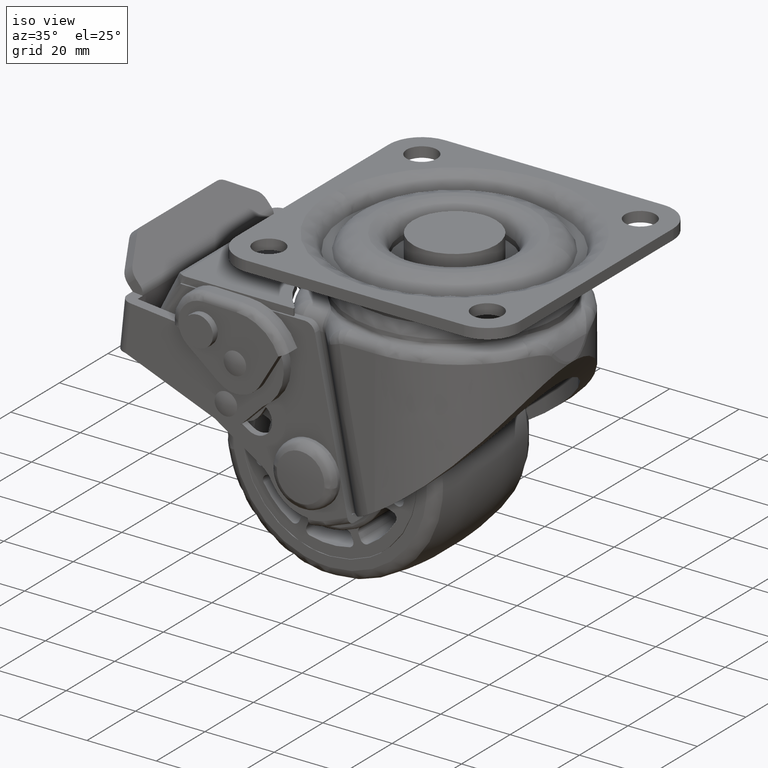
[diagram: clean part render]
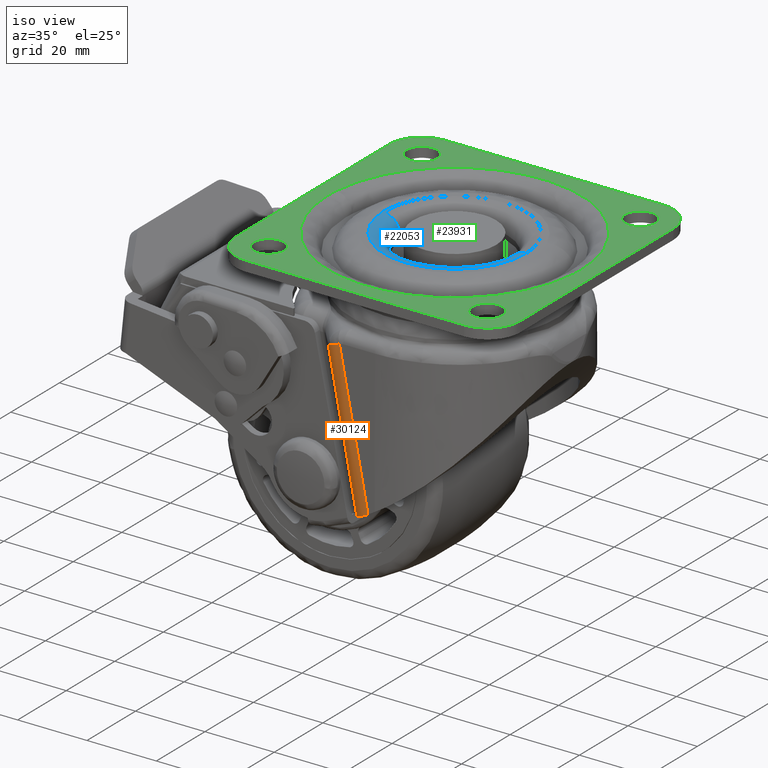
[diagram: same view with three faces highlighted in distinct colors, each labeled with its STEP entity id]
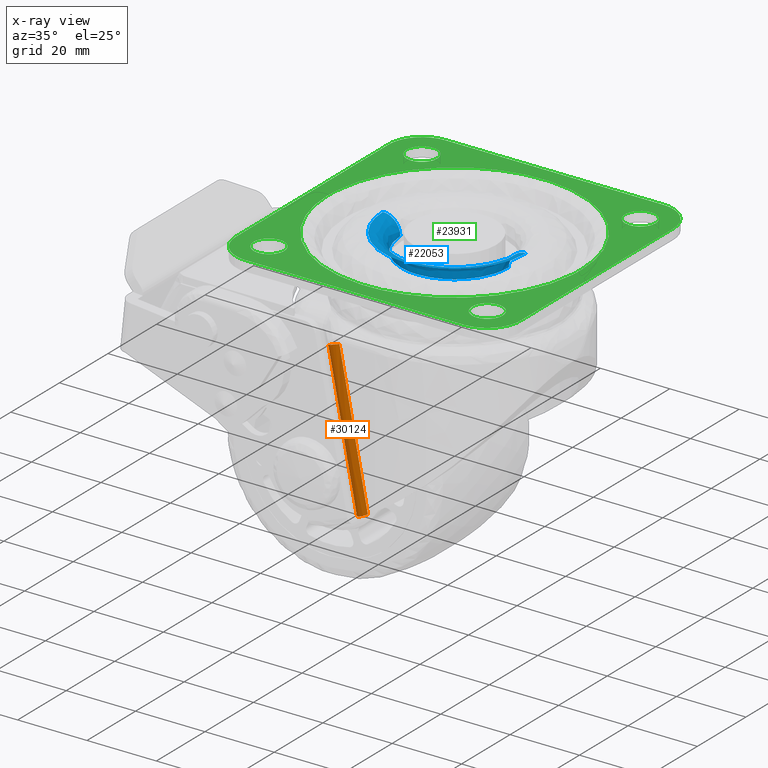
[diagram: x-ray of the same camera — body ghosted, the three highlighted faces saturated]
A machine part, iso view with three faces highlighted in distinct colors.
The next image is the same camera in x-ray (body ghosted, the three faces saturated) — at least one of them is partly hidden behind the body in this view.
Their STEP definitions:

[orange] entity #30124 — the highlighted face is a freeform B-spline surface patch.
#28146=CARTESIAN_POINT('',(6.946377500532240,-30.528909149460802,35.813484270939853));
#28147=VERTEX_POINT('',#28146);
#28170=CARTESIAN_POINT('',(8.521551022174009,-31.943278635437199,36.832827641202798));
#28171=VERTEX_POINT('',#28170);
#28172=CARTESIAN_POINT('',(8.521551022174009,-31.943278635437199,36.832827641202798));
#28173=CARTESIAN_POINT('',(8.373122399816133,-31.850144919843430,36.746752910845650));
#28174=CARTESIAN_POINT('',(8.228581499921129,-31.750556613681450,36.660465911783703));
#28175=CARTESIAN_POINT('',(7.947189664850573,-31.538304436541331,36.487789988488572));
#28176=CARTESIAN_POINT('',(7.810225367931842,-31.425489606261738,36.401314744561162));
#28177=CARTESIAN_POINT('',(7.546489802797897,-31.188695405326381,36.230172082061138));
#28178=CARTESIAN_POINT('',(7.419281062098017,-31.064365854824540,36.145230917303827));
#28179=CARTESIAN_POINT('',(7.175092741890747,-30.804760437177801,35.977565527150702));
#28180=CARTESIAN_POINT('',(7.058087390975459,-30.669474687418479,35.894840933560012));
#28181=CARTESIAN_POINT('',(6.946377500534170,-30.528909149471900,35.813484270938353));
#28182=B_SPLINE_CURVE_WITH_KNOTS('',3,(#28172,#28173,#28174,#28175,#28176,#28177,#28178,#28179,#28180,#28181),.UNSPECIFIED.,.F.,.U.,(4,2,2,2,4),(0.0,0.250000000000000,0.500000000000000,0.750000000000000,1.0),.UNSPECIFIED.);
#28183=EDGE_CURVE('',#28171,#28147,#28182,.T.);
#28316=CARTESIAN_POINT('',(11.793383256865720,-32.873505000000037,38.274537018203048));
#28317=VERTEX_POINT('',#28316);
#28351=CARTESIAN_POINT('',(11.793383256865720,-32.873505000000037,38.274537018203048));
#28352=CARTESIAN_POINT('',(11.492395065689470,-32.873505000000080,38.183736042183860));
#28353=CARTESIAN_POINT('',(11.197108723683661,-32.852649150657328,38.082255271813743));
#28354=CARTESIAN_POINT('',(10.834124888505521,-32.801475586337212,37.944642696607090));
#28355=CARTESIAN_POINT('',(10.761836937276270,-32.789979582289533,37.916576305882380));
#28356=CARTESIAN_POINT('',(10.617863038915960,-32.764465469852929,37.859399910917112));
#28357=CARTESIAN_POINT('',(10.546201781180899,-32.750446400186597,37.830297178607722));
#28358=CARTESIAN_POINT('',(10.333468778884161,-32.704923082281233,37.742064781533841));
#28359=CARTESIAN_POINT('',(10.194173989315161,-32.669878934300463,37.681829298355147));
#28360=CARTESIAN_POINT('',(9.783379556018669,-32.551197182843012,37.497457458314919));
#28361=CARTESIAN_POINT('',(9.518932955087401,-32.454071369037962,37.369682298367501));
#28362=CARTESIAN_POINT('',(9.007349896810993,-32.224992539465987,37.106577999051282));
#28363=CARTESIAN_POINT('',(8.760221834864549,-32.093036136603700,36.971234408595812));
#28364=CARTESIAN_POINT('',(8.521551022173322,-31.943278635437050,36.832827641204602));
#28365=B_SPLINE_CURVE_WITH_KNOTS('',3,(#28351,#28352,#28353,#28354,#28355,#28356,#28357,#28358,#28359,#28360,#28361,#28362,#28363,#28364),.UNSPECIFIED.,.F.,.U.,(4,2,2,2,2,2,4),(0.0,0.250000000000000,0.312499999999999,0.374999999999998,0.499999999999997,0.749999999999999,1.0),.UNSPECIFIED.);
#28366=EDGE_CURVE('',#28317,#28171,#28365,.T.);
#30065=CARTESIAN_POINT('',(6.278222732212611,-30.326052541944659,38.339834822104471));
#30066=CARTESIAN_POINT('',(15.230676496978599,-30.326052541944659,-7.716547146210872));
#30067=CARTESIAN_POINT('',(8.449894484639929,-33.009809207575977,38.761965048686932));
#30068=CARTESIAN_POINT('',(17.402348249405915,-33.009809207575977,-7.294416919628398));
#30069=CARTESIAN_POINT('',(11.861199987934054,-32.867655896210465,39.425055666980448));
#30070=CARTESIAN_POINT('',(20.813653752700045,-32.867655896210465,-6.631326301334885));
#30078=(BOUNDED_SURFACE()B_SPLINE_SURFACE(1,2,((#30065,#30067,#30069),(#30066,#30068,#30070)),.UNSPECIFIED.,.F.,.F.,.U.)B_SPLINE_SURFACE_WITH_KNOTS((2,2),(3,3),(0.0,46.918405220357130),(0.0,6.572773897127705),.UNSPECIFIED.)GEOMETRIC_REPRESENTATION_ITEM()RATIONAL_B_SPLINE_SURFACE(((1.0,0.891597546526503,0.991198961912559),(1.0,0.891597546526503,0.991198961912559)))REPRESENTATION_ITEM('')SURFACE());
#30079=CARTESIAN_POINT('',(20.002864117900401,-32.873504999997763,-3.959580714464740));
#30080=VERTEX_POINT('',#30079);
#30081=CARTESIAN_POINT('',(11.793383256865720,-32.873505000000037,38.274537018203048));
#30082=CARTESIAN_POINT('',(20.002864117900401,-32.873504999997763,-3.959580714464740));
#30083=QUASI_UNIFORM_CURVE('',1,(#30081,#30082),.UNSPECIFIED.,.F.,.U.);
#30084=EDGE_CURVE('',#28317,#30080,#30083,.T.);
#30085=ORIENTED_EDGE('',*,*,#30084,.F.);
#30086=ORIENTED_EDGE('',*,*,#28366,.T.);
#30087=ORIENTED_EDGE('',*,*,#28183,.T.);
#30088=CARTESIAN_POINT('',(15.182958720186800,-30.528909149472650,-6.560052720496691));
#30089=VERTEX_POINT('',#30088);
#30090=CARTESIAN_POINT('',(15.182958720186800,-30.528909149472650,-6.560052720496691));
#30091=CARTESIAN_POINT('',(6.946377500532240,-30.528909149460802,35.813484270939853));
#30092=QUASI_UNIFORM_CURVE('',1,(#30090,#30091),.UNSPECIFIED.,.F.,.U.);
#30093=EDGE_CURVE('',#30089,#28147,#30092,.T.);
#30094=ORIENTED_EDGE('',*,*,#30093,.F.);
#30095=CARTESIAN_POINT('',(20.002864117900401,-32.873504999997763,-3.959580714464740));
#30096=CARTESIAN_POINT('',(19.779881607342091,-32.873505000000058,-4.088318911047349));
#30097=CARTESIAN_POINT('',(19.558219736056280,-32.860839722280907,-4.215086213703958));
#30098=CARTESIAN_POINT('',(19.117496475879740,-32.810802208188122,-4.464819348201600));
#30099=CARTESIAN_POINT('',(18.898435217830421,-32.773428463320002,-4.587784898049360));
#30100=CARTESIAN_POINT('',(18.462986595348479,-32.673799452000551,-4.829985979270401));
#30101=CARTESIAN_POINT('',(18.246598739411588,-32.611546964153661,-4.949221582619235));
#30102=CARTESIAN_POINT('',(17.977904744406850,-32.517568040556618,-5.095939185364199));
#30103=CARTESIAN_POINT('',(17.924255803484289,-32.497961952326122,-5.125166195924093));
#30104=CARTESIAN_POINT('',(17.817141975579521,-32.457104822860579,-5.183386622239365));
#30105=CARTESIAN_POINT('',(17.763655413610699,-32.435841880828690,-5.212391543144258));
#30106=CARTESIAN_POINT('',(17.604417906690589,-32.369949215862512,-5.298548053873553));
#30107=CARTESIAN_POINT('',(17.499576791684682,-32.323102794605752,-5.355011569879964));
#30108=CARTESIAN_POINT('',(17.188975179228208,-32.173922918560322,-5.521557704123536));
#30109=CARTESIAN_POINT('',(16.987125566974370,-32.062971421673033,-5.628802194558091));
#30110=CARTESIAN_POINT('',(16.593968829903339,-31.818118146343899,-5.835975011050250));
#30111=CARTESIAN_POINT('',(16.402660628134409,-31.684218118680590,-5.935903378212400));
#30112=CARTESIAN_POINT('',(16.123955026785421,-31.465631477528959,-6.080348788452195));
#30113=CARTESIAN_POINT('',(16.032432180331480,-31.389807210850211,-6.127587824811000));
#30114=CARTESIAN_POINT('',(15.852241693905709,-31.232068312616530,-6.220233447932007));
#30115=CARTESIAN_POINT('',(15.763511291624800,-31.150070607704489,-6.265671220147338));
#30116=CARTESIAN_POINT('',(15.504070882300530,-30.896956992250939,-6.398035911979938));
#30117=CARTESIAN_POINT('',(15.339303552419089,-30.718088113936730,-6.481432008439452));
#30118=CARTESIAN_POINT('',(15.182958720187550,-30.528909149471652,-6.560052720496290));
#30119=B_SPLINE_CURVE_WITH_KNOTS('',3,(#30095,#30096,#30097,#30098,#30099,#30100,#30101,#30102,#30103,#30104,#30105,#30106,#30107,#30108,#30109,#30110,#30111,#30112,#30113,#30114,#30115,#30116,#30117,#30118),.UNSPECIFIED.,.F.,.U.,(4,2,2,2,2,2,2,2,2,2,2,4),(0.0,0.124999999999999,0.249999999999998,0.374999999999997,0.406249999999998,0.437499999999999,0.499999999999998,0.624999999999998,0.749999999999999,0.812499999999999,0.874999999999999,1.0),.UNSPECIFIED.);
#30120=EDGE_CURVE('',#30080,#30089,#30119,.T.);
#30121=ORIENTED_EDGE('',*,*,#30120,.F.);
#30122=EDGE_LOOP('',(#30085,#30086,#30087,#30094,#30121));
#30123=FACE_OUTER_BOUND('',#30122,.T.);
#30124=ADVANCED_FACE('',(#30123),#30078,.T.);

[blue] entity #22053 — the highlighted face is a freeform B-spline surface patch.
#21850=CARTESIAN_POINT('',(1.501618594754255,-0.257603817949442,57.500000000000000));
#21851=VERTEX_POINT('',#21850);
#21879=CARTESIAN_POINT('',(42.498381405246242,0.257603817949502,57.500000000000000));
#21880=VERTEX_POINT('',#21879);
#21896=CARTESIAN_POINT('',(42.500000000000249,2.842171E-014,57.500000000000000));
#21897=VERTEX_POINT('',#21896);
#21898=CARTESIAN_POINT('',(42.498381405246242,0.257603817949502,57.500000000000000));
#21899=CARTESIAN_POINT('',(42.498755515236986,0.171735099095748,57.499999999999979));
#21900=CARTESIAN_POINT('',(42.500233702955697,0.085871583128208,57.500000000000007));
#21901=CARTESIAN_POINT('',(42.500000000000249,2.842171E-014,57.500000000000000));
#21902=B_SPLINE_CURVE_WITH_KNOTS('',3,(#21898,#21899,#21900,#21901),.UNSPECIFIED.,.F.,.U.,(4,4),(0.000000050845643,0.257610449616340),.UNSPECIFIED.);
#21903=EDGE_CURVE('',#21880,#21897,#21902,.T.);
#21905=CARTESIAN_POINT('',(22.128711165329229,-20.499595933476321,57.499999999999993));
#21906=VERTEX_POINT('',#21905);
#21907=CARTESIAN_POINT('',(42.500000000000249,2.842171E-014,57.500000000000000));
#21908=CARTESIAN_POINT('',(42.500284197785248,-1.503421446619027,57.500000000000043));
#21909=CARTESIAN_POINT('',(42.204607358666927,-4.176004983574278,57.499999999999957));
#21910=CARTESIAN_POINT('',(41.057173837598818,-7.813553399389999,57.500000000000043));
#21911=CARTESIAN_POINT('',(39.700066086363400,-10.461161524032160,57.499999999999993));
#21912=CARTESIAN_POINT('',(38.130441870158378,-12.730807691281541,57.500000000000007));
#21913=CARTESIAN_POINT('',(36.133521945049857,-14.988686486776331,57.500000000000000));
#21914=CARTESIAN_POINT('',(33.644054981352006,-16.983305958413819,57.499999999999979));
#21915=CARTESIAN_POINT('',(30.983592125523920,-18.483559497900810,57.500000000000043));
#21916=CARTESIAN_POINT('',(28.469616142511359,-19.520825642609950,57.499999999999673));
#21917=CARTESIAN_POINT('',(25.510075958901179,-20.288469751178869,57.500000000001158));
#21918=CARTESIAN_POINT('',(23.298004087936100,-20.492357629206541,57.499999999998238));
#21919=CARTESIAN_POINT('',(22.128711165329229,-20.499595933476321,57.499999999999993));
#21920=B_SPLINE_CURVE_WITH_KNOTS('',3,(#21907,#21908,#21909,#21910,#21911,#21912,#21913,#21914,#21915,#21916,#21917,#21918,#21919),.UNSPECIFIED.,.F.,.U.,(4,1,1,1,1,1,1,1,1,1,4),(0.000000085644754,4.510195525660688,8.018166525384604,11.400853761346770,13.405399285772280,16.286868912341440,20.421253593811912,22.926934231100951,25.432627752141521,28.564731834950820,32.072662599720708),.UNSPECIFIED.);
#21921=EDGE_CURVE('',#21897,#21906,#21920,.T.);
#21923=CARTESIAN_POINT('',(22.128711165329229,-20.499595933476321,57.499999999999993));
#21924=CARTESIAN_POINT('',(20.541795524379221,-20.509937776914239,57.499999999999922));
#21925=CARTESIAN_POINT('',(18.076323785098761,-20.237407193281349,57.500000000000092));
#21926=CARTESIAN_POINT('',(14.427348387815689,-19.148044813832708,57.500000000000441));
#21927=CARTESIAN_POINT('',(11.294387868422460,-17.626775632023168,57.499999999998430));
#21928=CARTESIAN_POINT('',(8.505766733674170,-15.543698083283060,57.500000000002522));
#21929=CARTESIAN_POINT('',(6.079333410589524,-13.058494790259930,57.499999999998749));
#21930=CARTESIAN_POINT('',(4.007503482730578,-10.103852270028710,57.500000000000803));
#21931=CARTESIAN_POINT('',(2.475069299927627,-6.605107722487009,57.500000000000853));
#21932=CARTESIAN_POINT('',(1.683445360922648,-3.262326993384669,57.499999999997890));
#21933=CARTESIAN_POINT('',(1.513650792291115,-1.218021047783426,57.500000000004228));
#21934=CARTESIAN_POINT('',(1.501618594754255,-0.257603817949442,57.500000000000000));
#21935=B_SPLINE_CURVE_WITH_KNOTS('',3,(#21923,#21924,#21925,#21926,#21927,#21928,#21929,#21930,#21931,#21932,#21933,#21934),.UNSPECIFIED.,.F.,.U.,(4,1,1,1,1,1,1,1,1,4),(0.000000085617703,4.760734611762871,7.391699989810945,11.400787438306811,15.159275896573879,17.790181686621100,21.799245824024911,25.933606359302651,29.190995325079012,32.072476021965137),.UNSPECIFIED.);
#21936=EDGE_CURVE('',#21906,#21851,#21935,.T.);
#21941=CARTESIAN_POINT('',(37.505428915214644,0.628559266261070,52.152314454433771));
#21942=CARTESIAN_POINT('',(37.508137790424669,0.413005173343781,52.152314454433771));
#21943=CARTESIAN_POINT('',(37.705804109222697,-15.315952694940814,52.152314454433764));
#21944=CARTESIAN_POINT('',(22.194925707141053,-15.510878402081611,52.152314454433771));
#21945=CARTESIAN_POINT('',(6.684047305059411,-15.705804109222408,52.152314454433764));
#21946=CARTESIAN_POINT('',(6.486380986263159,0.023153758921326,52.152314454433771));
#21947=CARTESIAN_POINT('',(6.483672111054871,0.238707851701007,52.152314454433778));
#21948=CARTESIAN_POINT('',(37.105812038173347,0.612359592431207,57.887685870088774));
#21949=CARTESIAN_POINT('',(37.108451098336161,0.402360912003060,57.887685870088781));
#21950=CARTESIAN_POINT('',(37.301023021007104,-14.921219133016654,57.887685870088767));
#21951=CARTESIAN_POINT('',(22.189901943995334,-15.111121077011742,57.887685870088788));
#21952=CARTESIAN_POINT('',(7.078780866983570,-15.301023021006831,57.887685870088767));
#21953=CARTESIAN_POINT('',(6.886208944314347,0.022557023875653,57.887685870088781));
#21954=CARTESIAN_POINT('',(6.883569884153224,0.232555704169740,57.887685870088774));
#21955=CARTESIAN_POINT('',(42.838715734330336,0.844760112307558,57.487896817658815));
#21956=CARTESIAN_POINT('',(42.842356361156590,0.555063484614326,57.487896817658807));
#21957=CARTESIAN_POINT('',(43.108012490387658,-20.584066790770564,57.487896817658815));
#21958=CARTESIAN_POINT('',(22.261972849808657,-20.846039640578976,57.487896817658807));
#21959=CARTESIAN_POINT('',(1.415933209229654,-21.108012490387384,57.487896817658815));
#21960=CARTESIAN_POINT('',(1.150277080000958,0.031117784808205,57.487896817658793));
#21961=CARTESIAN_POINT('',(1.146636453177026,0.320814412316499,57.487896817658815));
#21969=(BOUNDED_SURFACE()B_SPLINE_SURFACE(2,2,((#21941,#21948,#21955),(#21942,#21949,#21956),(#21943,#21950,#21957),(#21944,#21951,#21958),(#21945,#21952,#21959),(#21946,#21953,#21960),(#21947,#21954,#21961)),.UNSPECIFIED.,.F.,.F.,.U.)B_SPLINE_SURFACE_WITH_KNOTS((3,1,2,1,3),(3,3),(0.0,0.690831532849072,35.232408154112584,69.773984775376093,70.464816307776331),(0.0,9.113649966390874),.UNSPECIFIED.)GEOMETRIC_REPRESENTATION_ITEM()RATIONAL_B_SPLINE_SURFACE(((0.921146729411493,0.604479481456729,0.921146741244127),(0.915813262251245,0.600979527149284,0.915813274015367),(0.643806437242182,0.422481857576905,0.643806445512228),(0.910479795090997,0.597479572841838,0.910479806786608),(0.643806437242182,0.422481857576905,0.643806445512228),(0.915813262247780,0.600979527147010,0.915813274011902),(0.921146729404563,0.604479481452182,0.921146741237196)))REPRESENTATION_ITEM('')SURFACE());
#21970=CARTESIAN_POINT('',(37.500000000000249,2.842171E-014,52.500000000000000));
#21971=VERTEX_POINT('',#21970);
#21972=CARTESIAN_POINT('',(37.498776185159159,0.194773618210363,52.500000000734829));
#21973=VERTEX_POINT('',#21972);
#21974=CARTESIAN_POINT('',(37.500000000000249,2.842171E-014,52.500000000000000));
#21975=CARTESIAN_POINT('',(37.498776185159159,0.194773618210363,52.500000000734829));
#21976=QUASI_UNIFORM_CURVE('',1,(#21974,#21975),.UNSPECIFIED.,.F.,.U.);
#21977=EDGE_CURVE('',#21971,#21973,#21976,.T.);
#21978=ORIENTED_EDGE('',*,*,#21977,.F.);
#21979=CARTESIAN_POINT('',(32.669495981564722,-11.243302695355091,52.500000000137717));
#21980=VERTEX_POINT('',#21979);
#21981=CARTESIAN_POINT('',(32.669495981564722,-11.243302695355091,52.500000000137717));
#21982=CARTESIAN_POINT('',(33.358684519001010,-10.589422453705071,52.500000000120060));
#21983=CARTESIAN_POINT('',(34.312611480715127,-9.500742905595800,52.500000000095127));
#21984=CARTESIAN_POINT('',(35.535063786043452,-7.635500249009518,52.500000000062393));
#21985=CARTESIAN_POINT('',(36.548966224164843,-5.571273456697894,52.500000000033928));
#21986=CARTESIAN_POINT('',(37.318787896833442,-2.915543916423688,52.500000000010708));
#21987=CARTESIAN_POINT('',(37.500085835325038,-0.950013480156834,52.500000000001478));
#21988=CARTESIAN_POINT('',(37.500000000000249,2.842171E-014,52.500000000000000));
#21989=B_SPLINE_CURVE_WITH_KNOTS('',3,(#21981,#21982,#21983,#21984,#21985,#21986,#21987,#21988),.UNSPECIFIED.,.F.,.U.,(4,1,1,1,1,4),(0.000000024874650,2.850038264629220,4.324206582628987,6.682842612106740,9.729443334600942,12.579481574355050),.UNSPECIFIED.);
#21990=EDGE_CURVE('',#21980,#21971,#21989,.T.);
#21991=ORIENTED_EDGE('',*,*,#21990,.F.);
#21992=CARTESIAN_POINT('',(22.097286846521651,-15.499694683105631,52.500000000367422));
#21993=VERTEX_POINT('',#21992);
#21994=CARTESIAN_POINT('',(22.097286846521651,-15.499694683105631,52.500000000367422));
#21995=CARTESIAN_POINT('',(23.130613335853710,-15.493357570339320,52.500000000345032));
#21996=CARTESIAN_POINT('',(24.892153315709329,-15.305174963776770,52.500000000306848));
#21997=CARTESIAN_POINT('',(27.529874735312990,-14.555703178810569,52.500000000249649));
#21998=CARTESIAN_POINT('',(30.124163981995629,-13.329361702547841,52.500000000192742));
#21999=CARTESIAN_POINT('',(31.831903589215809,-12.038470914884289,52.500000000156312));
#22000=CARTESIAN_POINT('',(32.669495981564722,-11.243302695355091,52.500000000137717));
#22001=B_SPLINE_CURVE_WITH_KNOTS('',3,(#21994,#21995,#21996,#21997,#21998,#21999,#22000),.UNSPECIFIED.,.F.,.U.,(4,1,1,1,4),(0.000000013259175,3.100020014772564,5.288282602410673,8.205931308314618,11.670662377678610),.UNSPECIFIED.);
#22002=EDGE_CURVE('',#21993,#21980,#22001,.T.);
#22003=ORIENTED_EDGE('',*,*,#22002,.F.);
#22004=CARTESIAN_POINT('',(6.501223814841334,-0.194773618210304,52.500000000734822));
#22005=VERTEX_POINT('',#22004);
#22006=CARTESIAN_POINT('',(6.501223814841334,-0.194773618210304,52.500000000734822));
#22007=CARTESIAN_POINT('',(6.513069762167689,-1.141947839650019,52.500000000734623));
#22008=CARTESIAN_POINT('',(6.730805785437114,-3.223365669509975,52.500000000730033));
#22009=CARTESIAN_POINT('',(7.515215328924365,-5.707292283363611,52.500000000711360));
#22010=CARTESIAN_POINT('',(8.592375647944190,-7.854942435489930,52.500000000686768));
#22011=CARTESIAN_POINT('',(9.574384766468421,-9.331104451556554,52.500000000663213));
#22012=CARTESIAN_POINT('',(10.974405859388019,-10.962404329654211,52.500000000630443));
#22013=CARTESIAN_POINT('',(12.584407634599581,-12.394822690892511,52.500000000592351));
#22014=CARTESIAN_POINT('',(14.772657611795539,-13.791840502520490,52.500000000540808));
#22015=CARTESIAN_POINT('',(16.697569160088289,-14.612942322860750,52.500000000495298));
#22016=CARTESIAN_POINT('',(19.191283275212861,-15.316108295719310,52.500000000436224));
#22017=CARTESIAN_POINT('',(20.834257886255109,-15.507966732297991,52.500000000398423));
#22018=CARTESIAN_POINT('',(22.097286846521651,-15.499694683105631,52.500000000367422));
#22019=B_SPLINE_CURVE_WITH_KNOTS('',3,(#22006,#22007,#22008,#22009,#22010,#22011,#22012,#22013,#22014,#22015,#22016,#22017,#22018),.UNSPECIFIED.,.F.,.U.,(4,1,1,1,1,1,1,1,1,1,4),(0.000000017240257,2.841776283172379,6.251955978598815,7.767590080230658,10.041018564294880,11.556647502113240,14.208982503472090,16.482410504520558,19.324231279327421,20.460953672844418,24.250002747587882),.UNSPECIFIED.);
#22020=EDGE_CURVE('',#22005,#21993,#22019,.T.);
#22021=ORIENTED_EDGE('',*,*,#22020,.F.);
#22022=CARTESIAN_POINT('',(6.501223814841334,-0.194773618210304,52.500000000734822));
#22023=CARTESIAN_POINT('',(6.501337111180132,-0.194772194425236,52.909065790510027));
#22024=CARTESIAN_POINT('',(6.412857674349834,-0.195884118377014,53.624869052610357));
#22025=CARTESIAN_POINT('',(6.052462904003548,-0.200413211079411,54.652096765246291));
#22026=CARTESIAN_POINT('',(5.470738615892833,-0.207723758946922,55.622943181731323));
#22027=CARTESIAN_POINT('',(4.624311090553145,-0.218360840904535,56.469434194431379));
#22028=CARTESIAN_POINT('',(3.688842314407649,-0.230116907114765,57.030027591499127));
#22029=CARTESIAN_POINT('',(2.667271468136846,-0.242955020802733,57.402668468449349));
#22030=CARTESIAN_POINT('',(1.951565415526573,-0.251949321783957,57.500169053044573));
#22031=CARTESIAN_POINT('',(1.501618594754255,-0.257603817949442,57.500000000000000));
#22032=B_SPLINE_CURVE_WITH_KNOTS('',3,(#22022,#22023,#22024,#22025,#22026,#22027,#22028,#22029,#22030,#22031),.UNSPECIFIED.,.F.,.U.,(4,1,1,1,1,1,1,4),(0.000000175720179,1.227173757483545,2.147591628609258,3.252090583914288,4.601940827333335,5.706439623171029,6.504137883388573,7.854030913454197),.UNSPECIFIED.);
#22033=EDGE_CURVE('',#22005,#21851,#22032,.T.);
#22034=ORIENTED_EDGE('',*,*,#22033,.T.);
#22035=ORIENTED_EDGE('',*,*,#21936,.F.);
#22036=ORIENTED_EDGE('',*,*,#21921,.F.);
#22037=ORIENTED_EDGE('',*,*,#21903,.F.);
#22038=CARTESIAN_POINT('',(37.498776185159159,0.194773618210363,52.500000000734829));
#22039=CARTESIAN_POINT('',(37.498693485627790,0.194772578936359,52.909061443350673));
#22040=CARTESIAN_POINT('',(37.597174449157279,0.196010192398514,53.706695813828489));
#22041=CARTESIAN_POINT('',(37.998271702231960,0.201050794511289,54.765873431525172));
#22042=CARTESIAN_POINT('',(38.592233658121692,0.208515133541370,55.678914768396439));
#22043=CARTESIAN_POINT('',(39.246975013534090,0.216743289231096,56.333684146256992));
#22044=CARTESIAN_POINT('',(39.987564845951802,0.226050305487277,56.848482189361313));
#22045=CARTESIAN_POINT('',(41.005697463434331,0.238845210847415,57.337887249587403));
#22046=CARTESIAN_POINT('',(41.905208554902110,0.250149395664706,57.500509406162031));
#22047=CARTESIAN_POINT('',(42.498381405246242,0.257603817949502,57.500000000000000));
#22048=B_SPLINE_CURVE_WITH_KNOTS('',3,(#22038,#22039,#22040,#22041,#22042,#22043,#22044,#22045,#22046,#22047),.UNSPECIFIED.,.F.,.U.,(4,1,1,1,1,1,1,4),(0.000000175742159,1.227173757501105,2.393030666650679,3.374799970055681,4.479231591107692,5.154188318854702,6.074606833047575,7.854030913454212),.UNSPECIFIED.);
#22049=EDGE_CURVE('',#21973,#21880,#22048,.T.);
#22050=ORIENTED_EDGE('',*,*,#22049,.F.);
#22051=EDGE_LOOP('',(#21978,#21991,#22003,#22021,#22034,#22035,#22036,#22037,#22050));
#22052=FACE_OUTER_BOUND('',#22051,.T.);
#22053=ADVANCED_FACE('',(#22052),#21969,.T.);

[green] entity #23931 — the highlighted face is a freeform B-spline surface patch.
#22604=CARTESIAN_POINT('',(-6.527402625023387,28.255979393118590,57.500000000000000));
#22605=VERTEX_POINT('',#22604);
#22611=CARTESIAN_POINT('',(-5.099999900000237,31.500000000000000,57.500000000000000));
#22612=VERTEX_POINT('',#22611);
#22613=CARTESIAN_POINT('',(-6.527402625023387,28.255979393118590,57.500000000000000));
#22614=CARTESIAN_POINT('',(-6.261198381693302,28.499788586041660,57.499999999999957));
#22615=CARTESIAN_POINT('',(-5.839052005710749,28.995167966912160,57.500000000000163));
#22616=CARTESIAN_POINT('',(-5.438036156951010,29.754789248246841,57.499999999999709));
#22617=CARTESIAN_POINT('',(-5.170561804728474,30.569105375223060,57.500000000000547));
#22618=CARTESIAN_POINT('',(-5.099902676665669,31.139012474550849,57.499999999999581));
#22619=CARTESIAN_POINT('',(-5.099999900000237,31.500000000000000,57.500000000000000));
#22620=B_SPLINE_CURVE_WITH_KNOTS('',3,(#22613,#22614,#22615,#22616,#22617,#22618,#22619),.UNSPECIFIED.,.F.,.U.,(4,1,1,1,4),(0.000000051740357,1.082934531674689,1.937862866075310,2.564829307610753,3.647763787498933),.UNSPECIFIED.);
#22621=EDGE_CURVE('',#22605,#22612,#22620,.T.);
#22623=CARTESIAN_POINT('',(-9.500001812164582,35.900000099999623,57.500000000000000));
#22624=VERTEX_POINT('',#22623);
#22625=CARTESIAN_POINT('',(-5.099999900000237,31.500000000000000,57.500000000000000));
#22626=CARTESIAN_POINT('',(-5.099952724640173,31.805979877318549,57.500000000000121));
#22627=CARTESIAN_POINT('',(-5.164090474951045,32.417919233427007,57.499999999999837));
#22628=CARTESIAN_POINT('',(-5.448164913658244,33.296050017420590,57.500000000000142));
#22629=CARTESIAN_POINT('',(-5.890014839048416,34.064870243919771,57.499999999999957));
#22630=CARTESIAN_POINT('',(-6.543873025167003,34.813744300950702,57.500000000000071));
#22631=CARTESIAN_POINT('',(-7.372544950672085,35.405003659652778,57.499999999999773));
#22632=CARTESIAN_POINT('',(-8.420137059084571,35.808964635433249,57.500000000000647));
#22633=CARTESIAN_POINT('',(-9.122020844689796,35.900116605395482,57.499999999999183));
#22634=CARTESIAN_POINT('',(-9.500001812164582,35.900000099999623,57.500000000000000));
#22635=B_SPLINE_CURVE_WITH_KNOTS('',3,(#22625,#22626,#22627,#22628,#22629,#22630,#22631,#22632,#22633,#22634),.UNSPECIFIED.,.F.,.U.,(4,1,1,1,1,1,1,4),(0.000000175152850,0.917936275765520,1.835880473619450,2.753822128171595,3.563750623437463,4.805674835941444,5.777636332066959,6.911548383120817),.UNSPECIFIED.);
#22636=EDGE_CURVE('',#22612,#22624,#22635,.T.);
#22638=CARTESIAN_POINT('',(-12.472597374977070,34.744020606881413,57.500000000000000));
#22639=VERTEX_POINT('',#22638);
#22640=CARTESIAN_POINT('',(-9.500001812164582,35.900000099999623,57.500000000000000));
#22641=CARTESIAN_POINT('',(-9.873987479077023,35.900103953773467,57.500000000000000));
#22642=CARTESIAN_POINT('',(-10.451875293768239,35.825836396870884,57.500000000000071));
#22643=CARTESIAN_POINT('',(-11.485564802297750,35.478164165703447,57.499999999999872));
#22644=CARTESIAN_POINT('',(-12.096834307212880,35.088894798634520,57.500000000000092));
#22645=CARTESIAN_POINT('',(-12.472597374977070,34.744020606881413,57.500000000000000));
#22646=B_SPLINE_CURVE_WITH_KNOTS('',3,(#22640,#22641,#22642,#22643,#22644,#22645),.UNSPECIFIED.,.F.,.U.,(4,1,1,4),(0.000000019699499,1.121944390250986,1.733913129787986,3.263837305992233),.UNSPECIFIED.);
#22647=EDGE_CURVE('',#22624,#22639,#22646,.T.);
#22687=CARTESIAN_POINT('',(-13.900000100000231,31.500000000000000,57.500000000000000));
#22688=VERTEX_POINT('',#22687);
#22689=CARTESIAN_POINT('',(-12.472597374977070,34.744020606881413,57.500000000000000));
#22690=CARTESIAN_POINT('',(-12.865205939237800,34.384931642391408,57.500000000000597));
#22691=CARTESIAN_POINT('',(-13.342212762531270,33.753076235965239,57.499999999999218));
#22692=CARTESIAN_POINT('',(-13.797242538661470,32.620803662619707,57.500000000000668));
#22693=CARTESIAN_POINT('',(-13.900179957200320,31.936994730783301,57.499999999999787));
#22694=CARTESIAN_POINT('',(-13.900000100000231,31.500000000000000,57.500000000000000));
#22695=B_SPLINE_CURVE_WITH_KNOTS('',3,(#22689,#22690,#22691,#22692,#22693,#22694),.UNSPECIFIED.,.F.,.U.,(4,1,1,4),(0.000000051741249,1.595913744133613,2.336845272270242,3.647763787498926),.UNSPECIFIED.);
#22696=EDGE_CURVE('',#22639,#22688,#22695,.T.);
#22698=CARTESIAN_POINT('',(-9.499998187835871,27.099999900000380,57.500000000000000));
#22699=VERTEX_POINT('',#22698);
#22700=CARTESIAN_POINT('',(-13.900000100000231,31.500000000000000,57.500000000000000));
#22701=CARTESIAN_POINT('',(-13.900201078121860,31.050009807850302,57.500000000000000));
#22702=CARTESIAN_POINT('',(-13.785790791398160,30.312198274579661,57.500000000000057));
#22703=CARTESIAN_POINT('',(-13.386663248819961,29.381326134443619,57.499999999999893));
#22704=CARTESIAN_POINT('',(-12.910379312546690,28.677883134554829,57.500000000000227));
#22705=CARTESIAN_POINT('',(-12.347686639497891,28.115205111145290,57.499999999999950));
#22706=CARTESIAN_POINT('',(-11.650878680165160,27.630815192770601,57.500000000000107));
#22707=CARTESIAN_POINT('',(-10.723810207216060,27.219774210515190,57.499999999999851));
#22708=CARTESIAN_POINT('',(-9.949982696675681,27.099792640686989,57.500000000000277));
#22709=CARTESIAN_POINT('',(-9.499998187835871,27.099999900000380,57.500000000000000));
#22710=B_SPLINE_CURVE_WITH_KNOTS('',3,(#22700,#22701,#22702,#22703,#22704,#22705,#22706,#22707,#22708,#22709),.UNSPECIFIED.,.F.,.U.,(4,1,1,1,1,1,1,4),(0.000000175179053,1.349902406617758,2.213869616972593,3.023840472038057,3.887708678160857,4.589686328603492,5.561647824475249,6.911548383120706),.UNSPECIFIED.);
#22711=EDGE_CURVE('',#22688,#22699,#22710,.T.);
#22713=CARTESIAN_POINT('',(-9.499998187835871,27.099999900000380,57.500000000000000));
#22714=CARTESIAN_POINT('',(-8.989969565051119,27.099599983786341,57.499999999999922));
#22715=CARTESIAN_POINT('',(-8.208311925163297,27.237538757392809,57.500000000000057));
#22716=CARTESIAN_POINT('',(-7.219997915890032,27.703462367237648,57.500000000000000));
#22717=CARTESIAN_POINT('',(-6.752962686328105,28.049222672548758,57.499999999999993));
#22718=CARTESIAN_POINT('',(-6.527402625023387,28.255979393118590,57.500000000000000));
#22719=B_SPLINE_CURVE_WITH_KNOTS('',3,(#22713,#22714,#22715,#22716,#22717,#22718),.UNSPECIFIED.,.F.,.U.,(4,1,1,4),(0.000000019699933,1.529924195851337,2.345883030432397,3.263837305992228),.UNSPECIFIED.);
#22720=EDGE_CURVE('',#22699,#22605,#22719,.T.);
#22806=CARTESIAN_POINT('',(-6.527402625023390,-34.744020606881413,57.500000000000000));
#22807=VERTEX_POINT('',#22806);
#22813=CARTESIAN_POINT('',(-5.099999900000237,-31.500000000000000,57.500000000000000));
#22814=VERTEX_POINT('',#22813);
#22815=CARTESIAN_POINT('',(-6.527402625023390,-34.744020606881413,57.500000000000000));
#22816=CARTESIAN_POINT('',(-6.176976117644843,-34.423334313363867,57.500000000000028));
#22817=CARTESIAN_POINT('',(-5.712955818638814,-33.833300492155047,57.500000000000178));
#22818=CARTESIAN_POINT('',(-5.221228048253837,-32.715738366296129,57.499999999999773));
#22819=CARTESIAN_POINT('',(-5.099695717279102,-31.975017095704938,57.500000000000192));
#22820=CARTESIAN_POINT('',(-5.099999900000237,-31.500000000000000,57.500000000000000));
#22821=B_SPLINE_CURVE_WITH_KNOTS('',3,(#22815,#22816,#22817,#22818,#22819,#22820),.UNSPECIFIED.,.F.,.U.,(4,1,1,4),(0.000000051737575,1.424911248598753,2.222852590609872,3.647763787498935),.UNSPECIFIED.);
#22822=EDGE_CURVE('',#22807,#22814,#22821,.T.);
#22824=CARTESIAN_POINT('',(-9.500001812164578,-27.099999900000380,57.500000000000000));
#22825=VERTEX_POINT('',#22824);
#22826=CARTESIAN_POINT('',(-5.099999900000237,-31.500000000000000,57.500000000000000));
#22827=CARTESIAN_POINT('',(-5.099483277950442,-30.959944996233819,57.500000000000561));
#22828=CARTESIAN_POINT('',(-5.257817784682157,-30.114422462253589,57.499999999999083));
#22829=CARTESIAN_POINT('',(-5.817856528558285,-29.018596945110669,57.500000000000703));
#22830=CARTESIAN_POINT('',(-6.441643051940122,-28.286462258324420,57.499999999999773));
#22831=CARTESIAN_POINT('',(-7.250966400439885,-27.678502662263131,57.500000000000071));
#22832=CARTESIAN_POINT('',(-8.240186473231917,-27.225343520000671,57.499999999999773));
#22833=CARTESIAN_POINT('',(-9.050019885328331,-27.099782754130921,57.500000000000128));
#22834=CARTESIAN_POINT('',(-9.500001812164578,-27.099999900000380,57.500000000000000));
#22835=B_SPLINE_CURVE_WITH_KNOTS('',3,(#22826,#22827,#22828,#22829,#22830,#22831,#22832,#22833,#22834),.UNSPECIFIED.,.F.,.U.,(4,1,1,1,1,1,4),(0.000000175170790,1.619892774876744,2.537847329127830,3.671732504613603,4.481694002523135,5.561647824472928,6.911548383120802),.UNSPECIFIED.);
#22836=EDGE_CURVE('',#22814,#22825,#22835,.T.);
#22838=CARTESIAN_POINT('',(-12.472597374977070,-28.255979393118590,57.500000000000000));
#22839=VERTEX_POINT('',#22838);
#22840=CARTESIAN_POINT('',(-9.500001812164578,-27.099999900000380,57.500000000000000));
#22841=CARTESIAN_POINT('',(-9.805985517451235,-27.099953657297270,57.499999999999922));
#22842=CARTESIAN_POINT('',(-10.383911542172569,-27.160546328773549,57.500000000000128));
#22843=CARTESIAN_POINT('',(-11.427346076132849,-27.484738826864220,57.499999999999979));
#22844=CARTESIAN_POINT('',(-12.096835707702990,-27.911109692308379,57.500000000000043));
#22845=CARTESIAN_POINT('',(-12.472597374977070,-28.255979393118590,57.500000000000000));
#22846=B_SPLINE_CURVE_WITH_KNOTS('',3,(#22840,#22841,#22842,#22843,#22844,#22845),.UNSPECIFIED.,.F.,.U.,(4,1,1,4),(0.000000019699821,0.917954295253024,1.733913129788183,3.263837305992240),.UNSPECIFIED.);
#22847=EDGE_CURVE('',#22825,#22839,#22846,.T.);
#22887=CARTESIAN_POINT('',(-13.900000100000231,-31.500000000000000,57.500000000000000));
#22888=VERTEX_POINT('',#22887);
#22889=CARTESIAN_POINT('',(-12.472597374977070,-28.255979393118590,57.500000000000000));
#22890=CARTESIAN_POINT('',(-12.738797440762280,-28.499792371710100,57.499999999999993));
#22891=CARTESIAN_POINT('',(-13.210646765917961,-29.053422518399540,57.500000000000071));
#22892=CARTESIAN_POINT('',(-13.754453948157810,-30.151268201517560,57.499999999999787));
#22893=CARTESIAN_POINT('',(-13.900332462107720,-31.005989410992139,57.500000000000142));
#22894=CARTESIAN_POINT('',(-13.900000100000231,-31.500000000000000,57.500000000000000));
#22895=B_SPLINE_CURVE_WITH_KNOTS('',3,(#22889,#22890,#22891,#22892,#22893,#22894),.UNSPECIFIED.,.F.,.U.,(4,1,1,4),(0.000000051741033,1.082934531674815,2.165842020624253,3.647763787498922),.UNSPECIFIED.);
#22896=EDGE_CURVE('',#22839,#22888,#22895,.T.);
#22898=CARTESIAN_POINT('',(-9.499998187835871,-35.900000099999623,57.500000000000000));
#22899=VERTEX_POINT('',#22898);
#22900=CARTESIAN_POINT('',(-13.900000100000231,-31.500000000000000,57.500000000000000));
#22901=CARTESIAN_POINT('',(-13.900045922731341,-31.805979574148949,57.500000000000050));
#22902=CARTESIAN_POINT('',(-13.835917641456071,-32.417921368235568,57.499999999999957));
#22903=CARTESIAN_POINT('',(-13.562949997600921,-33.261605403878377,57.500000000000071));
#22904=CARTESIAN_POINT('',(-13.139950547594420,-34.019098643797129,57.500000000000028));
#22905=CARTESIAN_POINT('',(-12.650884620760680,-34.600279223657580,57.499999999999247));
#22906=CARTESIAN_POINT('',(-11.978073225300051,-35.173615752330768,57.500000000000469));
#22907=CARTESIAN_POINT('',(-10.975640964152010,-35.725469319864359,57.499999999999837));
#22908=CARTESIAN_POINT('',(-10.040017162424910,-35.900472000378961,57.499999999999872));
#22909=CARTESIAN_POINT('',(-9.499998187835871,-35.900000099999623,57.500000000000000));
#22910=B_SPLINE_CURVE_WITH_KNOTS('',3,(#22900,#22901,#22902,#22903,#22904,#22905,#22906,#22907,#22908,#22909),.UNSPECIFIED.,.F.,.U.,(4,1,1,1,1,1,1,4),(0.000000175153176,0.917936275766864,1.835880473621232,2.645836078962600,3.509717106015933,4.103695839669358,5.291655216121660,6.911548383120815),.UNSPECIFIED.);
#22911=EDGE_CURVE('',#22888,#22899,#22910,.T.);
#22913=CARTESIAN_POINT('',(-9.499998187835871,-35.900000099999623,57.500000000000000));
#22914=CARTESIAN_POINT('',(-8.989971474208726,-35.900408841303950,57.499999999999972));
#22915=CARTESIAN_POINT('',(-8.208312670291853,-35.762442320393788,57.500000000000043));
#22916=CARTESIAN_POINT('',(-7.219993585518475,-35.296559976708572,57.499999999999929));
#22917=CARTESIAN_POINT('',(-6.752965572934421,-34.950765338070831,57.500000000000021));
#22918=CARTESIAN_POINT('',(-6.527402625023390,-34.744020606881413,57.500000000000000));
#22919=B_SPLINE_CURVE_WITH_KNOTS('',3,(#22913,#22914,#22915,#22916,#22917,#22918),.UNSPECIFIED.,.F.,.U.,(4,1,1,4),(0.000000019699075,1.529924195850922,2.345883030432220,3.263837305992227),.UNSPECIFIED.);
#22920=EDGE_CURVE('',#22899,#22807,#22919,.T.);
#23007=CARTESIAN_POINT('',(56.472597374976843,-34.744020606881421,57.500000000000000));
#23008=VERTEX_POINT('',#23007);
#23014=CARTESIAN_POINT('',(57.900000100000000,-31.500000000000000,57.500000000000000));
#23015=VERTEX_POINT('',#23014);
#23016=CARTESIAN_POINT('',(56.472597374976843,-34.744020606881421,57.500000000000000));
#23017=CARTESIAN_POINT('',(56.696728507872528,-34.538677717516862,57.499999999999922));
#23018=CARTESIAN_POINT('',(57.152942761791302,-34.024170722376397,57.500000000000099));
#23019=CARTESIAN_POINT('',(57.732543607043361,-32.943657446979302,57.500000000000043));
#23020=CARTESIAN_POINT('',(57.900423051804658,-32.032020856459368,57.499999999999829));
#23021=CARTESIAN_POINT('',(57.900000100000000,-31.500000000000000,57.500000000000000));
#23022=B_SPLINE_CURVE_WITH_KNOTS('',3,(#23016,#23017,#23018,#23019,#23020,#23021),.UNSPECIFIED.,.F.,.U.,(4,1,1,4),(0.000000051740915,0.911940985679483,2.051850095168524,3.647763787498913),.UNSPECIFIED.);
#23023=EDGE_CURVE('',#23008,#23015,#23022,.T.);
#23025=CARTESIAN_POINT('',(53.499998187835637,-27.099999900000370,57.500000000000000));
#23026=VERTEX_POINT('',#23025);
#23027=CARTESIAN_POINT('',(57.900000100000000,-31.500000000000000,57.500000000000000));
#23028=CARTESIAN_POINT('',(57.900227189473597,-31.050006019127771,57.500000000000007));
#23029=CARTESIAN_POINT('',(57.785755858477330,-30.312206979403850,57.500000000000171));
#23030=CARTESIAN_POINT('',(57.336851606481183,-29.264918339533740,57.499999999999893));
#23031=CARTESIAN_POINT('',(56.709351999842553,-28.418740273441980,57.500000000000313));
#23032=CARTESIAN_POINT('',(55.902250830821693,-27.772939907528510,57.499999999999893));
#23033=CARTESIAN_POINT('',(54.849605160121577,-27.251019476791011,57.499999999999972));
#23034=CARTESIAN_POINT('',(54.040040339587271,-27.099559885975101,57.500000000000362));
#23035=CARTESIAN_POINT('',(53.499998187835637,-27.099999900000370,57.500000000000000));
#23036=B_SPLINE_CURVE_WITH_KNOTS('',3,(#23027,#23028,#23029,#23030,#23031,#23032,#23033,#23034,#23035),.UNSPECIFIED.,.F.,.U.,(4,1,1,1,1,1,4),(0.000000175178359,1.349902406616621,2.213869616971131,3.401831111045905,4.481694002525520,5.291655216126399,6.911548383120715),.UNSPECIFIED.);
#23037=EDGE_CURVE('',#23015,#23026,#23036,.T.);
#23039=CARTESIAN_POINT('',(50.527402625023157,-28.255979393118579,57.500000000000000));
#23040=VERTEX_POINT('',#23039);
#23041=CARTESIAN_POINT('',(53.499998187835637,-27.099999900000370,57.500000000000000));
#23042=CARTESIAN_POINT('',(52.989966994122383,-27.099596310010359,57.500000000000028));
#23043=CARTESIAN_POINT('',(52.208314905363032,-27.237543997609460,57.500000000000007));
#23044=CARTESIAN_POINT('',(51.219994868185140,-27.703456263758060,57.499999999999957));
#23045=CARTESIAN_POINT('',(50.752964414188213,-28.049227477779851,57.499999999999993));
#23046=CARTESIAN_POINT('',(50.527402625023157,-28.255979393118579,57.500000000000000));
#23047=B_SPLINE_CURVE_WITH_KNOTS('',3,(#23041,#23042,#23043,#23044,#23045,#23046),.UNSPECIFIED.,.F.,.U.,(4,1,1,4),(0.000000019698973,1.529924195850967,2.345883030432243,3.263837305992244),.UNSPECIFIED.);
#23048=EDGE_CURVE('',#23026,#23040,#23047,.T.);
#23088=CARTESIAN_POINT('',(49.099999900000000,-31.500000000000000,57.500000000000000));
#23089=VERTEX_POINT('',#23088);
#23090=CARTESIAN_POINT('',(50.527402625023157,-28.255979393118579,57.500000000000000));
#23091=CARTESIAN_POINT('',(50.162922991217108,-28.589477308240340,57.500000000000078));
#23092=CARTESIAN_POINT('',(49.702318718819591,-29.183166543425539,57.499999999999829));
#23093=CARTESIAN_POINT('',(49.218115241767478,-30.303255461616651,57.500000000000313));
#23094=CARTESIAN_POINT('',(49.099685899045816,-31.024985389908000,57.499999999999723));
#23095=CARTESIAN_POINT('',(49.099999900000000,-31.500000000000000,57.500000000000000));
#23096=B_SPLINE_CURVE_WITH_KNOTS('',3,(#23090,#23091,#23092,#23093,#23094,#23095),.UNSPECIFIED.,.F.,.U.,(4,1,1,4),(0.000000051737859,1.481921818669554,2.222852590610432,3.647763787498962),.UNSPECIFIED.);
#23097=EDGE_CURVE('',#23040,#23089,#23096,.T.);
#23099=CARTESIAN_POINT('',(53.500001812164363,-35.900000099999630,57.500000000000000));
#23100=VERTEX_POINT('',#23099);
#23101=CARTESIAN_POINT('',(49.099999900000000,-31.500000000000000,57.500000000000000));
#23102=CARTESIAN_POINT('',(49.099986555257402,-31.769977009573559,57.500000000000043));
#23103=CARTESIAN_POINT('',(49.156438113751413,-32.381947070862822,57.499999999999893));
#23104=CARTESIAN_POINT('',(49.419409939813683,-33.230046088538238,57.500000000000227));
#23105=CARTESIAN_POINT('',(49.860069324878367,-34.019076423030093,57.499999999999773));
#23106=CARTESIAN_POINT('',(50.500384307890151,-34.780324253620833,57.500000000000178));
#23107=CARTESIAN_POINT('',(51.385107889938261,-35.419851705873342,57.499999999999773));
#23108=CARTESIAN_POINT('',(52.456102689155017,-35.817770579818387,57.500000000000860));
#23109=CARTESIAN_POINT('',(53.158027550783139,-35.900060233694930,57.499999999998977));
#23110=CARTESIAN_POINT('',(53.500001812164363,-35.900000099999630,57.500000000000000));
#23111=B_SPLINE_CURVE_WITH_KNOTS('',3,(#23101,#23102,#23103,#23104,#23105,#23106,#23107,#23108,#23109,#23110),.UNSPECIFIED.,.F.,.U.,(4,1,1,1,1,1,1,4),(0.000000175170117,0.809944259681248,1.835880473633125,2.645836078972139,3.509717106023233,4.805674835946480,5.885628658297095,6.911548383120704),.UNSPECIFIED.);
#23112=EDGE_CURVE('',#23089,#23100,#23111,.T.);
#23114=CARTESIAN_POINT('',(53.500001812164363,-35.900000099999630,57.500000000000000));
#23115=CARTESIAN_POINT('',(53.873991902140673,-35.900124425650432,57.499999999999922));
#23116=CARTESIAN_POINT('',(54.451871654319177,-35.825820060264881,57.500000000000099));
#23117=CARTESIAN_POINT('',(55.485567855043072,-35.478172669543483,57.499999999999908));
#23118=CARTESIAN_POINT('',(56.096832029109500,-35.088891738606641,57.500000000000028));
#23119=CARTESIAN_POINT('',(56.472597374976843,-34.744020606881421,57.500000000000000));
#23120=B_SPLINE_CURVE_WITH_KNOTS('',3,(#23114,#23115,#23116,#23117,#23118,#23119),.UNSPECIFIED.,.F.,.U.,(4,1,1,4),(0.000000019700325,1.121944390251526,1.733913129788308,3.263837305992237),.UNSPECIFIED.);
#23121=EDGE_CURVE('',#23100,#23008,#23120,.T.);
#23208=CARTESIAN_POINT('',(56.472597374976843,28.255979393118579,57.500000000000000));
#23209=VERTEX_POINT('',#23208);
#23215=CARTESIAN_POINT('',(57.900000100000000,31.500000000000000,57.500000000000000));
#23216=VERTEX_POINT('',#23215);
#23217=CARTESIAN_POINT('',(56.472597374976843,28.255979393118579,57.500000000000000));
#23218=CARTESIAN_POINT('',(56.822961950923059,28.576711586839568,57.500000000000028));
#23219=CARTESIAN_POINT('',(57.287105425877378,29.166653309794238,57.499999999999979));
#23220=CARTESIAN_POINT('',(57.778760337858927,30.284284029635579,57.499999999999979));
#23221=CARTESIAN_POINT('',(57.900283650540743,31.024980166711170,57.500000000000007));
#23222=CARTESIAN_POINT('',(57.900000100000000,31.500000000000000,57.500000000000000));
#23223=B_SPLINE_CURVE_WITH_KNOTS('',3,(#23217,#23218,#23219,#23220,#23221,#23222),.UNSPECIFIED.,.F.,.U.,(4,1,1,4),(0.000000051741335,1.424911248600469,2.222852590610450,3.647763787498908),.UNSPECIFIED.);
#23224=EDGE_CURVE('',#23209,#23216,#23223,.T.);
#23226=CARTESIAN_POINT('',(53.499998187835637,35.900000099999623,57.500000000000000));
#23227=VERTEX_POINT('',#23226);
#23228=CARTESIAN_POINT('',(57.900000100000000,31.500000000000000,57.500000000000000));
#23229=CARTESIAN_POINT('',(57.900069375643142,31.841975772472662,57.500000000000092));
#23230=CARTESIAN_POINT('',(57.817744795050473,32.543889218916739,57.499999999999957));
#23231=CARTESIAN_POINT('',(57.407306383331473,33.648917588204107,57.499999999999893));
#23232=CARTESIAN_POINT('',(56.755740800187887,34.527329582329017,57.500000000000128));
#23233=CARTESIAN_POINT('',(55.931683049515989,35.203369882449067,57.499999999999957));
#23234=CARTESIAN_POINT('',(54.921625383941397,35.735579831380193,57.500000000000107));
#23235=CARTESIAN_POINT('',(54.040021918558651,35.900428226954688,57.499999999999858));
#23236=CARTESIAN_POINT('',(53.499998187835637,35.900000099999623,57.500000000000000));
#23237=B_SPLINE_CURVE_WITH_KNOTS('',3,(#23228,#23229,#23230,#23231,#23232,#23233,#23234,#23235,#23236),.UNSPECIFIED.,.F.,.U.,(4,1,1,1,1,1,4),(0.000000175167452,1.025925048597891,2.105874510287100,3.509717106023099,4.265715006723436,5.291655216124958,6.911548383120686),.UNSPECIFIED.);
#23238=EDGE_CURVE('',#23216,#23227,#23237,.T.);
#23240=CARTESIAN_POINT('',(50.527402625023157,34.744020606881421,57.500000000000000));
#23241=VERTEX_POINT('',#23240);
#23242=CARTESIAN_POINT('',(53.499998187835637,35.900000099999623,57.500000000000000));
#23243=CARTESIAN_POINT('',(53.194020803868270,35.900035296642002,57.500000000000007));
#23244=CARTESIAN_POINT('',(52.548067630625631,35.832390044657032,57.499999999999957));
#23245=CARTESIAN_POINT('',(51.509987796395528,35.483187673380570,57.500000000000043));
#23246=CARTESIAN_POINT('',(50.853122626358278,35.042791280262293,57.500000000000021));
#23247=CARTESIAN_POINT('',(50.527402625023157,34.744020606881421,57.500000000000000));
#23248=B_SPLINE_CURVE_WITH_KNOTS('',3,(#23242,#23243,#23244,#23245,#23246,#23247),.UNSPECIFIED.,.F.,.U.,(4,1,1,4),(0.000000019700790,0.917954295253622,1.937902813366665,3.263837305992229),.UNSPECIFIED.);
#23249=EDGE_CURVE('',#23227,#23241,#23248,.T.);
#23290=CARTESIAN_POINT('',(49.099999900000000,31.500000000000000,57.500000000000000));
#23291=VERTEX_POINT('',#23290);
#23292=CARTESIAN_POINT('',(50.527402625023157,34.744020606881421,57.500000000000000));
#23293=CARTESIAN_POINT('',(50.261196614558237,34.500209982668132,57.500000000000021));
#23294=CARTESIAN_POINT('',(49.814219787825898,33.975704192184409,57.500000000000007));
#23295=CARTESIAN_POINT('',(49.257058892266002,32.886619530271290,57.500000000000107));
#23296=CARTESIAN_POINT('',(49.099513565160898,32.032048120870321,57.499999999999822));
#23297=CARTESIAN_POINT('',(49.099999900000000,31.500000000000000,57.500000000000000));
#23298=B_SPLINE_CURVE_WITH_KNOTS('',3,(#23292,#23293,#23294,#23295,#23296,#23297),.UNSPECIFIED.,.F.,.U.,(4,1,1,4),(0.000000051738251,1.082934531673957,2.051850095167870,3.647763787498917),.UNSPECIFIED.);
#23299=EDGE_CURVE('',#23241,#23291,#23298,.T.);
#23301=CARTESIAN_POINT('',(53.500001812164363,27.099999900000370,57.500000000000000));
#23302=VERTEX_POINT('',#23301);
#23303=CARTESIAN_POINT('',(49.099999900000000,31.500000000000000,57.500000000000000));
#23304=CARTESIAN_POINT('',(49.099954498331591,31.194020415789829,57.499999999999993));
#23305=CARTESIAN_POINT('',(49.164081516280632,30.582078190203980,57.500000000000007));
#23306=CARTESIAN_POINT('',(49.437052304620131,29.738396144820040,57.500000000000043));
#23307=CARTESIAN_POINT('',(49.868861518560962,28.965104592956731,57.499999999999602));
#23308=CARTESIAN_POINT('',(50.396997220686877,28.345232502348800,57.500000000001101));
#23309=CARTESIAN_POINT('',(51.084341231336722,27.788150350180469,57.499999999999297));
#23310=CARTESIAN_POINT('',(52.078389769313517,27.264485891375319,57.500000000000327));
#23311=CARTESIAN_POINT('',(52.959965319891822,27.099507085120390,57.499999999999908));
#23312=CARTESIAN_POINT('',(53.500001812164363,27.099999900000370,57.500000000000000));
#23313=B_SPLINE_CURVE_WITH_KNOTS('',3,(#23303,#23304,#23305,#23306,#23307,#23308,#23309,#23310,#23311,#23312),.UNSPECIFIED.,.F.,.U.,(4,1,1,1,1,1,1,4),(0.000000175160081,0.917936275772483,1.835880473626146,2.645836078967165,3.563750623443610,4.265715006722415,5.291655216125320,6.911548383120706),.UNSPECIFIED.);
#23314=EDGE_CURVE('',#23291,#23302,#23313,.T.);
#23316=CARTESIAN_POINT('',(53.500001812164363,27.099999900000370,57.500000000000000));
#23317=CARTESIAN_POINT('',(53.873987938954500,27.099885344794391,57.500000000000092));
#23318=CARTESIAN_POINT('',(54.519876854998493,27.182882222858080,57.499999999999837));
#23319=CARTESIAN_POINT('',(55.547127233333022,27.555147151790969,57.500000000000149));
#23320=CARTESIAN_POINT('',(56.146869451704433,27.957207552273530,57.499999999999872));
#23321=CARTESIAN_POINT('',(56.472597374976843,28.255979393118579,57.500000000000000));
#23322=B_SPLINE_CURVE_WITH_KNOTS('',3,(#23316,#23317,#23318,#23319,#23320,#23321),.UNSPECIFIED.,.F.,.U.,(4,1,1,4),(0.000000019699126,1.121944390250838,1.937902813366168,3.263837305992235),.UNSPECIFIED.);
#23323=EDGE_CURVE('',#23302,#23209,#23322,.T.);
#23628=CARTESIAN_POINT('',(-14.333910819829390,3.204366876005673,57.500000000000000));
#23629=VERTEX_POINT('',#23628);
#23643=CARTESIAN_POINT('',(-14.474937185532850,2.842171E-014,57.500000000000000));
#23644=VERTEX_POINT('',#23643);
#23645=CARTESIAN_POINT('',(-14.474937185532850,2.842171E-014,57.500000000000000));
#23646=CARTESIAN_POINT('',(-14.474945822631231,1.069500655082186,57.499999999999780));
#23647=CARTESIAN_POINT('',(-14.427874231779461,2.139001774366478,57.500000000000078));
#23648=CARTESIAN_POINT('',(-14.333910819829390,3.204366876005673,57.500000000000000));
#23649=B_SPLINE_CURVE_WITH_KNOTS('',3,(#23645,#23646,#23647,#23648),.UNSPECIFIED.,.F.,.U.,(4,4),(1.846292E-010,3.208507092641888),.UNSPECIFIED.);
#23650=EDGE_CURVE('',#23644,#23629,#23649,.T.);
#23652=CARTESIAN_POINT('',(20.396377906935530,-36.439668479116783,57.499999999999993));
#23653=VERTEX_POINT('',#23652);
#23654=CARTESIAN_POINT('',(20.396377906935530,-36.439668479116783,57.499999999999993));
#23655=CARTESIAN_POINT('',(19.019949035074529,-36.379122744732769,57.500000000000071));
#23656=CARTESIAN_POINT('',(16.129450943139659,-36.087206068130307,57.499999999999879));
#23657=CARTESIAN_POINT('',(11.520520606255690,-35.057056477673029,57.500000000000028));
#23658=CARTESIAN_POINT('',(7.228461954909939,-33.455670190879530,57.500000000000057));
#23659=CARTESIAN_POINT('',(3.111766325965609,-31.300163904219161,57.499999999999957));
#23660=CARTESIAN_POINT('',(-0.730358902581165,-28.679360842315109,57.500000000000078));
#23661=CARTESIAN_POINT('',(-4.278296713688526,-25.447552004671060,57.499999999999901));
#23662=CARTESIAN_POINT('',(-7.556620876540341,-21.561558782966170,57.499999999999680));
#23663=CARTESIAN_POINT('',(-10.055188448815720,-17.634134435070852,57.500000000001052));
#23664=CARTESIAN_POINT('',(-12.307479448372970,-12.754131819777230,57.499999999999702));
#23665=CARTESIAN_POINT('',(-14.009948155072660,-7.033711568062802,57.500000000000263));
#23666=CARTESIAN_POINT('',(-14.475294723309300,-2.465488120186228,57.499999999999773));
#23667=CARTESIAN_POINT('',(-14.474937185532850,2.842171E-014,57.500000000000000));
#23668=B_SPLINE_CURVE_WITH_KNOTS('',3,(#23654,#23655,#23656,#23657,#23658,#23659,#23660,#23661,#23662,#23663,#23664,#23665,#23666,#23667),.UNSPECIFIED.,.F.,.U.,(4,1,1,1,1,1,1,1,1,1,1,4),(0.000000059286585,4.133284879670050,8.701642365907013,14.140203205507859,17.838410620674779,22.624337751776832,28.062821891861532,32.196137562287298,37.852228829719607,41.985523161782311,48.294253354939869,55.690640733973240),.UNSPECIFIED.);
#23669=EDGE_CURVE('',#23653,#23644,#23668,.T.);
#23671=CARTESIAN_POINT('',(58.333910819829882,-3.204366876005617,57.500000000000000));
#23672=VERTEX_POINT('',#23671);
#23673=CARTESIAN_POINT('',(58.333910819829882,-3.204366876005617,57.500000000000000));
#23674=CARTESIAN_POINT('',(58.174761362504469,-5.010200335652167,57.500000000000021));
#23675=CARTESIAN_POINT('',(57.645134383932103,-8.239225385234530,57.499999999999993));
#23676=CARTESIAN_POINT('',(56.264633290496121,-12.754678740364730,57.499999999999780));
#23677=CARTESIAN_POINT('',(54.591403022569430,-16.542178357407380,57.500000000000277));
#23678=CARTESIAN_POINT('',(52.439387357623438,-20.246203861246720,57.500000000000007));
#23679=CARTESIAN_POINT('',(49.565102045468052,-24.085711153318421,57.500000000000213));
#23680=CARTESIAN_POINT('',(45.384591175457409,-28.238664461677629,57.500000000000050));
#23681=CARTESIAN_POINT('',(40.295725297986031,-31.765873080621649,57.499999999999773));
#23682=CARTESIAN_POINT('',(35.212489668005247,-34.116363457138768,57.500000000000078));
#23683=CARTESIAN_POINT('',(30.909127294008851,-35.442525698367653,57.499999999999943));
#23684=CARTESIAN_POINT('',(26.133509539279789,-36.369034609054680,57.500000000000057));
#23685=CARTESIAN_POINT('',(22.642120094372821,-36.538713170461357,57.499999999999943));
#23686=CARTESIAN_POINT('',(20.396377906935530,-36.439668479116783,57.499999999999993));
#23687=B_SPLINE_CURVE_WITH_KNOTS('',3,(#23673,#23674,#23675,#23676,#23677,#23678,#23679,#23680,#23681,#23682,#23683,#23684,#23685,#23686),.UNSPECIFIED.,.F.,.U.,(4,1,1,1,1,1,1,1,1,1,1,4),(0.000000059279557,5.438484749642640,9.789328819547528,14.140146142063250,17.838338632866211,22.624246450316239,28.497790795561919,35.459124000706502,41.115190542797023,45.248464211515270,48.946682523427533,55.690415991883462),.UNSPECIFIED.);
#23688=EDGE_CURVE('',#23672,#23653,#23687,.T.);
#23737=CARTESIAN_POINT('',(58.474937185533349,2.842171E-014,57.500000000000000));
#23738=VERTEX_POINT('',#23737);
#23739=CARTESIAN_POINT('',(58.474937185533349,2.842171E-014,57.500000000000000));
#23740=CARTESIAN_POINT('',(58.474945822631739,-1.069500655082134,57.499999999999901));
#23741=CARTESIAN_POINT('',(58.427874231779917,-2.139001774366421,57.500000000000007));
#23742=CARTESIAN_POINT('',(58.333910819829882,-3.204366876005617,57.500000000000000));
#23743=B_SPLINE_CURVE_WITH_KNOTS('',3,(#23739,#23740,#23741,#23742),.UNSPECIFIED.,.F.,.U.,(4,4),(1.846372E-010,3.208507092641889),.UNSPECIFIED.);
#23744=EDGE_CURVE('',#23738,#23672,#23743,.T.);
#23746=CARTESIAN_POINT('',(23.603622093064981,36.439668479116840,57.499999999999993));
#23747=VERTEX_POINT('',#23746);
#23748=CARTESIAN_POINT('',(23.603622093064981,36.439668479116840,57.499999999999993));
#23749=CARTESIAN_POINT('',(25.269829221095840,36.366421012803343,57.500000000000043));
#23750=CARTESIAN_POINT('',(28.375453208691589,36.015215175168571,57.500000000000028));
#23751=CARTESIAN_POINT('',(32.749372735472392,34.941183247367420,57.499999999999972));
#23752=CARTESIAN_POINT('',(37.036438535155462,33.341730481837153,57.500000000000050));
#23753=CARTESIAN_POINT('',(41.473506658722727,31.001742910478409,57.499999999999901));
#23754=CARTESIAN_POINT('',(45.691159831101707,27.897827478689329,57.500000000000270));
#23755=CARTESIAN_POINT('',(49.782350950485537,23.870341427919531,57.499999999999787));
#23756=CARTESIAN_POINT('',(52.936597927628952,19.591111495424499,57.500000000000007));
#23757=CARTESIAN_POINT('',(55.298475059071933,15.087851406344980,57.500000000000142));
#23758=CARTESIAN_POINT('',(56.913450695274832,10.884330776731691,57.499999999999332));
#23759=CARTESIAN_POINT('',(58.147914574510082,5.873560271862928,57.500000000001883));
#23760=CARTESIAN_POINT('',(58.475126925422579,2.102904315883016,57.499999999997442));
#23761=CARTESIAN_POINT('',(58.474937185533349,2.842171E-014,57.500000000000000));
#23762=B_SPLINE_CURVE_WITH_KNOTS('',3,(#23748,#23749,#23750,#23751,#23752,#23753,#23754,#23755,#23756,#23757,#23758,#23759,#23760,#23761),.UNSPECIFIED.,.F.,.U.,(4,1,1,1,1,1,1,1,1,1,1,4),(0.000000059326183,5.003442949457956,9.354268951172486,13.487575948510649,18.708582752701599,24.364661140224751,29.150519772818100,35.894336203846123,40.245189962493171,44.378482269505220,49.381948344427357,55.690640733973261),.UNSPECIFIED.);
#23763=EDGE_CURVE('',#23747,#23738,#23762,.T.);
#23765=CARTESIAN_POINT('',(-14.333910819829390,3.204366876005673,57.500000000000000));
#23766=CARTESIAN_POINT('',(-14.187469120621589,4.865735082762713,57.499999999999993));
#23767=CARTESIAN_POINT('',(-13.700051398051761,7.952901950743076,57.499999999999957));
#23768=CARTESIAN_POINT('',(-12.557172535001470,11.857037702923449,57.500000000000028));
#23769=CARTESIAN_POINT('',(-11.064933941263190,15.558834050518429,57.500000000000128));
#23770=CARTESIAN_POINT('',(-9.158513563108995,19.154179633437160,57.499999999999730));
#23771=CARTESIAN_POINT('',(-6.388735389108377,23.068672384778271,57.500000000000213));
#23772=CARTESIAN_POINT('',(-3.129363264289924,26.588492205040151,57.499999999999922));
#23773=CARTESIAN_POINT('',(1.075420500159957,30.056184758325909,57.499999999999829));
#23774=CARTESIAN_POINT('',(5.523357569953664,32.689587379025014,57.500000000000668));
#23775=CARTESIAN_POINT('',(10.228862061673119,34.614865903191522,57.499999999998913));
#23776=CARTESIAN_POINT('',(14.781456755586310,35.870716079257100,57.500000000000817));
#23777=CARTESIAN_POINT('',(19.322675873301630,36.473455618286650,57.499999999999673));
#23778=CARTESIAN_POINT('',(22.372092955412871,36.493870274623127,57.500000000000057));
#23779=CARTESIAN_POINT('',(23.603622093064981,36.439668479116840,57.499999999999993));
#23780=B_SPLINE_CURVE_WITH_KNOTS('',3,(#23765,#23766,#23767,#23768,#23769,#23770,#23771,#23772,#23773,#23774,#23775,#23776,#23777,#23778,#23779),.UNSPECIFIED.,.F.,.U.,(4,1,1,1,1,1,1,1,1,1,1,1,4),(0.000000059263428,5.003422757682962,9.354231201687696,12.182277617200519,16.968177576692060,21.536559919495140,26.540015230280559,31.325849804678029,37.852076075303259,41.985353727300676,46.553727209349873,51.992239749322252,55.690415991883469),.UNSPECIFIED.);
#23781=EDGE_CURVE('',#23629,#23747,#23780,.T.);
#23789=CARTESIAN_POINT('',(-23.095899841068348,45.095899841068089,57.500000000000000));
#23790=CARTESIAN_POINT('',(67.095902040479501,45.095899841068089,57.500000000000000));
#23791=CARTESIAN_POINT('',(-23.095899841068348,-45.095902040479480,57.500000000000000));
#23792=CARTESIAN_POINT('',(67.095902040479501,-45.095902040479480,57.500000000000000));
#23793=B_SPLINE_SURFACE_WITH_KNOTS('',1,1,((#23789,#23791),(#23790,#23792)),.UNSPECIFIED.,.F.,.F.,.U.,(2,2),(2,2),(0.0,90.191801881547860),(0.0,90.191801881547576),.UNSPECIFIED.);
#23794=CARTESIAN_POINT('',(53.499997015487097,41.0,57.500000000000000));
#23795=VERTEX_POINT('',#23794);
#23796=CARTESIAN_POINT('',(-9.500002984513122,41.0,57.500000000000000));
#23797=VERTEX_POINT('',#23796);
#23798=CARTESIAN_POINT('',(53.499997015487097,41.0,57.500000000000000));
#23799=CARTESIAN_POINT('',(-9.500002984513122,41.0,57.500000000000000));
#23800=QUASI_UNIFORM_CURVE('',1,(#23798,#23799),.UNSPECIFIED.,.F.,.U.);
#23801=EDGE_CURVE('',#23795,#23797,#23800,.T.);
#23802=ORIENTED_EDGE('',*,*,#23801,.T.);
#23803=CARTESIAN_POINT('',(-19.000000000000249,31.500000000000000,57.500000000000000));
#23804=VERTEX_POINT('',#23803);
#23805=CARTESIAN_POINT('',(-9.500002984513122,41.0,57.500000000000000));
#23806=CARTESIAN_POINT('',(-10.082911090766229,41.000065194218692,57.500000000000007));
#23807=CARTESIAN_POINT('',(-11.209846826510651,40.895934755929957,57.500000000000007));
#23808=CARTESIAN_POINT('',(-12.901501900265520,40.427891177558067,57.500000000000043));
#23809=CARTESIAN_POINT('',(-14.270064760924310,39.759877717802347,57.499999999999822));
#23810=CARTESIAN_POINT('',(-15.548372334270070,38.871273630754743,57.500000000000497));
#23811=CARTESIAN_POINT('',(-16.685543734961090,37.801874376438469,57.499999999999261));
#23812=CARTESIAN_POINT('',(-17.669153685346181,36.441050446680393,57.500000000000277));
#23813=CARTESIAN_POINT('',(-18.318541798991291,35.110313314392549,57.499999999999353));
#23814=CARTESIAN_POINT('',(-18.843767403943652,33.520651100837661,57.500000000001172));
#23815=CARTESIAN_POINT('',(-19.000264123135288,32.316102971619699,57.499999999999233));
#23816=CARTESIAN_POINT('',(-19.000000000000249,31.500000000000000,57.500000000000000));
#23817=B_SPLINE_CURVE_WITH_KNOTS('',3,(#23805,#23806,#23807,#23808,#23809,#23810,#23811,#23812,#23813,#23814,#23815,#23816),.UNSPECIFIED.,.F.,.U.,(4,1,1,1,1,1,1,1,1,4),(0.000000118895978,1.748720447270898,3.380909474448716,5.246250771547663,6.295500209582341,8.044241859685187,9.909556542456970,11.308577105310491,12.474429097618570,14.922657055186709),.UNSPECIFIED.);
#23818=EDGE_CURVE('',#23797,#23804,#23817,.T.);
#23819=ORIENTED_EDGE('',*,*,#23818,.T.);
#23820=CARTESIAN_POINT('',(-19.000000000000249,-31.500000000000000,57.500000000000000));
#23821=VERTEX_POINT('',#23820);
#23822=CARTESIAN_POINT('',(-19.000000000000249,31.500000000000000,57.500000000000000));
#23823=CARTESIAN_POINT('',(-19.000000000000249,-31.500000000000000,57.500000000000000));
#23824=QUASI_UNIFORM_CURVE('',1,(#23822,#23823),.UNSPECIFIED.,.F.,.U.);
#23825=EDGE_CURVE('',#23804,#23821,#23824,.T.);
#23826=ORIENTED_EDGE('',*,*,#23825,.T.);
#23827=CARTESIAN_POINT('',(-9.500003316125062,-40.999999999999297,57.500000000000000));
#23828=VERTEX_POINT('',#23827);
#23829=CARTESIAN_POINT('',(-19.000000000000249,-31.500000000000000,57.500000000000000));
#23830=CARTESIAN_POINT('',(-19.000209977133359,-32.277229979106131,57.500000000000227));
#23831=CARTESIAN_POINT('',(-18.817738789997168,-33.753848542998718,57.499999999999552));
#23832=CARTESIAN_POINT('',(-18.150284941273721,-35.549632769168902,57.500000000000483));
#23833=CARTESIAN_POINT('',(-17.297958506524509,-36.991406816439557,57.499999999999282));
#23834=CARTESIAN_POINT('',(-16.258787545324921,-38.257803815263138,57.500000000000632));
#23835=CARTESIAN_POINT('',(-15.056750364555141,-39.256663189278889,57.499999999999780));
#23836=CARTESIAN_POINT('',(-13.750017916043200,-40.028965426191533,57.499999999999972));
#23837=CARTESIAN_POINT('',(-12.600412671353739,-40.513437600098392,57.500000000000057));
#23838=CARTESIAN_POINT('',(-11.132115565601550,-40.900428743606362,57.500000000000092));
#23839=CARTESIAN_POINT('',(-10.121775024217330,-41.000080966810160,57.499999999999623));
#23840=CARTESIAN_POINT('',(-9.500003316125062,-40.999999999999297,57.500000000000000));
#23841=B_SPLINE_CURVE_WITH_KNOTS('',3,(#23829,#23830,#23831,#23832,#23833,#23834,#23835,#23836,#23837,#23838,#23839,#23840),.UNSPECIFIED.,.F.,.U.,(4,1,1,1,1,1,1,1,1,4),(0.000000118951101,2.331643869203447,4.430175269947823,5.712590343808341,7.344778942643834,9.326632698152711,10.375897155323299,11.891502510565999,13.057352662174040,14.922656868282839),.UNSPECIFIED.);
#23842=EDGE_CURVE('',#23821,#23828,#23841,.T.);
#23843=ORIENTED_EDGE('',*,*,#23842,.T.);
#23844=CARTESIAN_POINT('',(53.500000000000000,-41.0,57.500000000000000));
#23845=VERTEX_POINT('',#23844);
#23846=CARTESIAN_POINT('',(-9.500003316125062,-40.999999999999297,57.500000000000000));
#23847=CARTESIAN_POINT('',(53.500000000000000,-41.0,57.500000000000000));
#23848=QUASI_UNIFORM_CURVE('',1,(#23846,#23847),.UNSPECIFIED.,.F.,.U.);
#23849=EDGE_CURVE('',#23828,#23845,#23848,.T.);
#23850=ORIENTED_EDGE('',*,*,#23849,.T.);
#23851=CARTESIAN_POINT('',(63.0,-31.499996683874201,57.500000000000000));
#23852=VERTEX_POINT('',#23851);
#23853=CARTESIAN_POINT('',(53.500000000000000,-41.0,57.500000000000000));
#23854=CARTESIAN_POINT('',(54.005188587464978,-41.000028559012108,57.499999999999908));
#23855=CARTESIAN_POINT('',(55.015560360646099,-40.919220415835248,57.500000000000121));
#23856=CARTESIAN_POINT('',(56.530501236334182,-40.549620448314244,57.499999999999957));
#23857=CARTESIAN_POINT('',(58.251435345473958,-39.812153236611479,57.499999999999979));
#23858=CARTESIAN_POINT('',(59.750555208498859,-38.742500801256043,57.500000000000178));
#23859=CARTESIAN_POINT('',(60.996903741258819,-37.400542101262708,57.499999999999808));
#23860=CARTESIAN_POINT('',(61.842048127265429,-36.135775784970782,57.500000000000192));
#23861=CARTESIAN_POINT('',(62.418605356312540,-34.856221320126288,57.499999999999950));
#23862=CARTESIAN_POINT('',(62.872485820851203,-33.326388510202698,57.500000000000071));
#23863=CARTESIAN_POINT('',(63.000154970900411,-32.238369726475192,57.499999999999993));
#23864=CARTESIAN_POINT('',(63.0,-31.499996683874201,57.500000000000000));
#23865=B_SPLINE_CURVE_WITH_KNOTS('',3,(#23853,#23854,#23855,#23856,#23857,#23858,#23859,#23860,#23861,#23862,#23863,#23864),.UNSPECIFIED.,.F.,.U.,(4,1,1,1,1,1,1,1,1,4),(0.000000117789384,1.515573345888949,3.031159204147727,4.663335799027074,7.111629130773969,8.510559605743429,10.142742528117790,11.658331254285610,12.707582878210671,14.922660606353270),.UNSPECIFIED.);
#23866=EDGE_CURVE('',#23845,#23852,#23865,.T.);
#23867=ORIENTED_EDGE('',*,*,#23866,.T.);
#23868=CARTESIAN_POINT('',(63.0,31.500000000000000,57.500000000000000));
#23869=VERTEX_POINT('',#23868);
#23870=CARTESIAN_POINT('',(63.0,-31.499996683874201,57.500000000000000));
#23871=CARTESIAN_POINT('',(63.0,31.500000000000000,57.500000000000000));
#23872=QUASI_UNIFORM_CURVE('',1,(#23870,#23871),.UNSPECIFIED.,.F.,.U.);
#23873=EDGE_CURVE('',#23852,#23869,#23872,.T.);
#23874=ORIENTED_EDGE('',*,*,#23873,.T.);
#23875=CARTESIAN_POINT('',(63.0,31.500000000000000,57.500000000000000));
#23876=CARTESIAN_POINT('',(63.000038335110183,32.082899609529697,57.499999999999993));
#23877=CARTESIAN_POINT('',(62.878115934946720,33.404192314290398,57.500000000000092));
#23878=CARTESIAN_POINT('',(62.356748943088419,35.085841173719643,57.499999999999943));
#23879=CARTESIAN_POINT('',(61.594300769436487,36.533235246004480,57.499999999999993));
#23880=CARTESIAN_POINT('',(60.749761106419413,37.701711966699492,57.500000000000007));
#23881=CARTESIAN_POINT('',(59.536296829641493,38.915325823175792,57.500000000000028));
#23882=CARTESIAN_POINT('',(58.040887330889902,39.914496915002630,57.500000000000007));
#23883=CARTESIAN_POINT('',(55.986819558543793,40.765392505251988,57.499999999999979));
#23884=CARTESIAN_POINT('',(54.471584413435870,41.000466827044981,57.500000000000050));
#23885=CARTESIAN_POINT('',(53.499997015487097,41.0,57.500000000000000));
#23886=B_SPLINE_CURVE_WITH_KNOTS('',3,(#23875,#23876,#23877,#23878,#23879,#23880,#23881,#23882,#23883,#23884,#23885),.UNSPECIFIED.,.F.,.U.,(4,1,1,1,1,1,1,1,4),(0.000000117839477,1.748720840536365,3.963835893084569,5.246251954517684,6.645289896949688,8.277369323961546,10.375899624762420,12.008091062423279,14.922660419449500),.UNSPECIFIED.);
#23887=EDGE_CURVE('',#23869,#23795,#23886,.T.);
#23888=ORIENTED_EDGE('',*,*,#23887,.T.);
#23889=EDGE_LOOP('',(#23802,#23819,#23826,#23843,#23850,#23867,#23874,#23888));
#23890=FACE_OUTER_BOUND('',#23889,.T.);
#23891=ORIENTED_EDGE('',*,*,#23650,.T.);
#23892=ORIENTED_EDGE('',*,*,#23781,.T.);
#23893=ORIENTED_EDGE('',*,*,#23763,.T.);
#23894=ORIENTED_EDGE('',*,*,#23744,.T.);
#23895=ORIENTED_EDGE('',*,*,#23688,.T.);
#23896=ORIENTED_EDGE('',*,*,#23669,.T.);
#23897=EDGE_LOOP('',(#23891,#23892,#23893,#23894,#23895,#23896));
#23898=FACE_BOUND('',#23897,.T.);
#23899=ORIENTED_EDGE('',*,*,#23314,.F.);
#23900=ORIENTED_EDGE('',*,*,#23299,.F.);
#23901=ORIENTED_EDGE('',*,*,#23249,.F.);
#23902=ORIENTED_EDGE('',*,*,#23238,.F.);
#23903=ORIENTED_EDGE('',*,*,#23224,.F.);
#23904=ORIENTED_EDGE('',*,*,#23323,.F.);
#23905=EDGE_LOOP('',(#23899,#23900,#23901,#23902,#23903,#23904));
#23906=FACE_BOUND('',#23905,.T.);
#23907=ORIENTED_EDGE('',*,*,#23112,.F.);
#23908=ORIENTED_EDGE('',*,*,#23097,.F.);
#23909=ORIENTED_EDGE('',*,*,#23048,.F.);
#23910=ORIENTED_EDGE('',*,*,#23037,.F.);
#23911=ORIENTED_EDGE('',*,*,#23023,.F.);
#23912=ORIENTED_EDGE('',*,*,#23121,.F.);
#23913=EDGE_LOOP('',(#23907,#23908,#23909,#23910,#23911,#23912));
#23914=FACE_BOUND('',#23913,.T.);
#23915=ORIENTED_EDGE('',*,*,#22911,.F.);
#23916=ORIENTED_EDGE('',*,*,#22896,.F.);
#23917=ORIENTED_EDGE('',*,*,#22847,.F.);
#23918=ORIENTED_EDGE('',*,*,#22836,.F.);
#23919=ORIENTED_EDGE('',*,*,#22822,.F.);
#23920=ORIENTED_EDGE('',*,*,#22920,.F.);
#23921=EDGE_LOOP('',(#23915,#23916,#23917,#23918,#23919,#23920));
#23922=FACE_BOUND('',#23921,.T.);
#23923=ORIENTED_EDGE('',*,*,#22711,.F.);
#23924=ORIENTED_EDGE('',*,*,#22696,.F.);
#23925=ORIENTED_EDGE('',*,*,#22647,.F.);
#23926=ORIENTED_EDGE('',*,*,#22636,.F.);
#23927=ORIENTED_EDGE('',*,*,#22621,.F.);
#23928=ORIENTED_EDGE('',*,*,#22720,.F.);
#23929=EDGE_LOOP('',(#23923,#23924,#23925,#23926,#23927,#23928));
#23930=FACE_BOUND('',#23929,.T.);
#23931=ADVANCED_FACE('',(#23890,#23898,#23906,#23914,#23922,#23930),#23793,.F.);